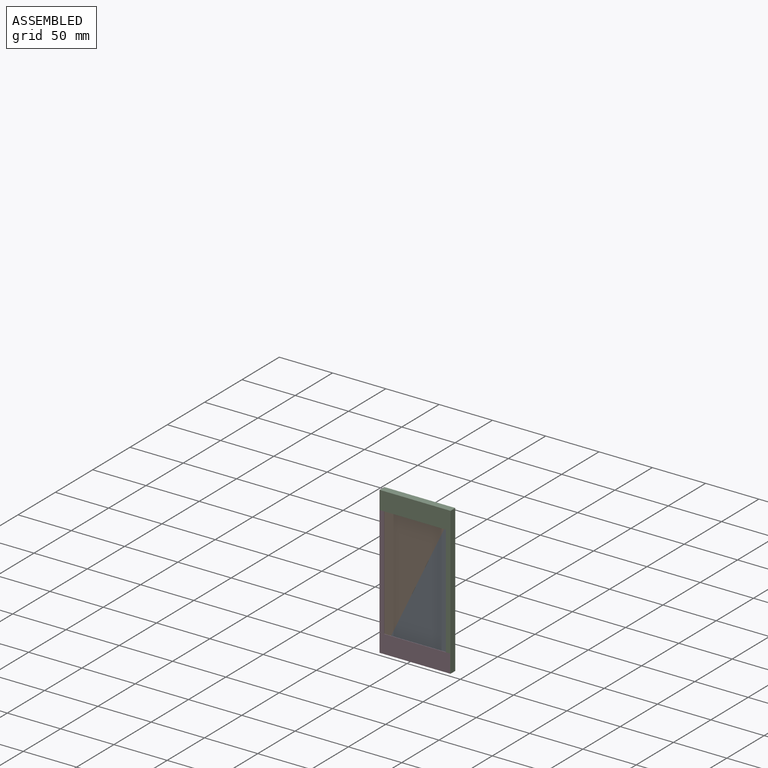
[diagram: assembled view]
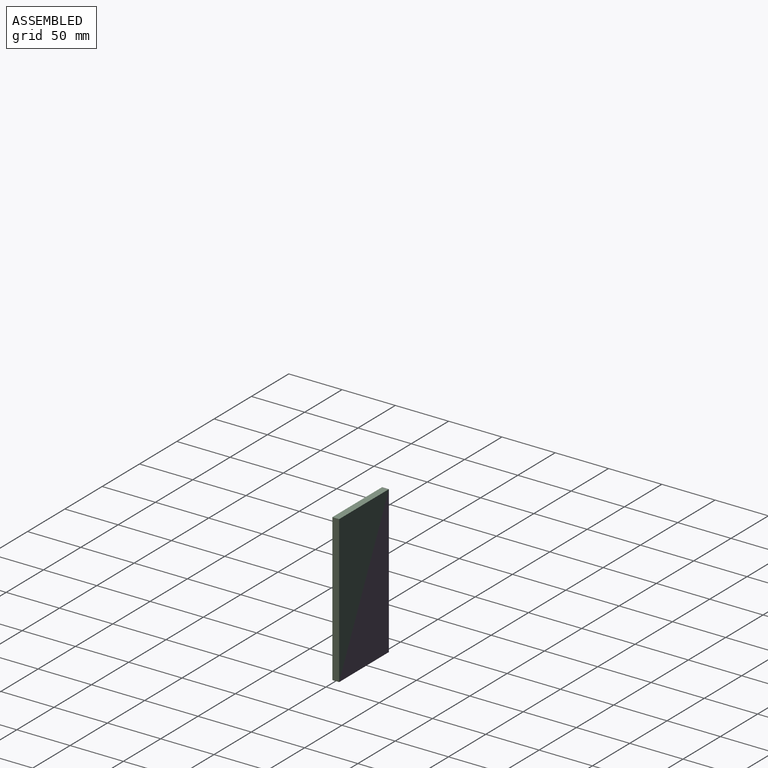
[diagram: assembled view, second angle]
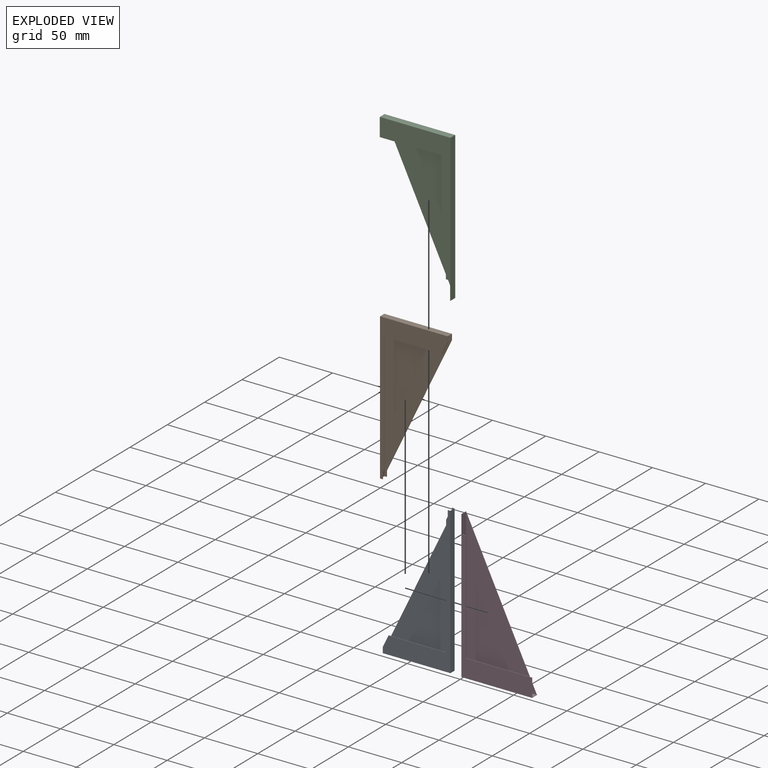
[diagram: exploded view]
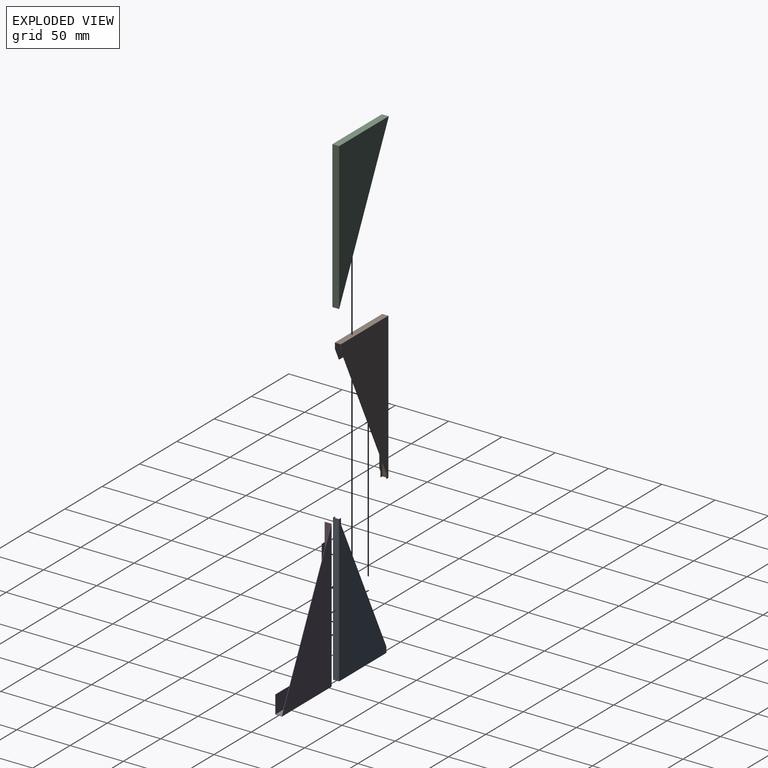
[diagram: exploded view, second angle]
ASSEMBLY  parts=4 mates=4
PART A: 17 faces, bbox 63.5x5.7x137.5 mm
  f0: plane 5.29x0.32mm, normal (1,0,0), area 1.7mm2, adj f1,f9,f10,f13
  f1: plane 126.98x60.94mm, normal (0.9,0,-0.43), area 44.7mm2, adj f0,f3,f10,f13
  f2: plane 3.03x1.45mm, normal (0.9,0,-0.43), area 1.1mm2, adj f4,f5,f12,f14
  f3: plane 5.72x5.27mm, normal (1,0,0), area 5mm2, adj f1,f4,f6,f7,f10,f13,f14,f15
  f4: plane 137.54x63.48mm, normal (0,-1,0), area 1489.8mm2, adj f2,f3,f5,f6,f7,f8,f9,f11
  f5: plane 5.29x0.32mm, normal (1,0,0), area 1.7mm2, adj f2,f4,f9,f14
  f6: plane 11.22x5.38mm, normal (0.9,0,-0.43), area 4mm2, adj f3,f4,f11,f14
  f7: plane 63.48x5.72mm, normal (0,0,1), area 362.8mm2, adj f3,f4,f8,f10
  f8: plane 137.54x5.72mm, normal (-1,0,0), area 786mm2, adj f4,f7,f9,f10
  f9: plane 5.72x2.54mm, normal (0,0,-1), area 3.2mm2, adj f0,f4,f5,f8,f10,f13,f14,f16
  f10: plane 137.54x63.48mm, normal (0,1,0), area 4539.6mm2, adj f0,f1,f3,f7,f8,f9
  f11: plane 54.11x0.32mm, normal (0,0,-1), area 17.2mm2, adj f4,f6,f12,f14
  f12: plane 112.74x0.32mm, normal (1,0,0), area 35.8mm2, adj f2,f4,f11,f14
  f13: plane 137.22x63.17mm, normal (0,-1,0), area 4475.9mm2, adj f0,f1,f3,f9,f15,f16
  f14: plane 137.22x63.17mm, normal (0,1,0), area 1426mm2, adj f2,f3,f5,f6,f9,f11,f12,f15
  f15: plane 63.17x5.08mm, normal (0,0,-1), area 320.9mm2, adj f3,f13,f14,f16
  f16: plane 137.22x5.08mm, normal (1,0,0), area 697.1mm2, adj f9,f13,f14,f15
PART B: same geometry as A
PART C: 15 faces, bbox 66.7x6.4x138.2 mm
  f0: plane 138.18x66.34mm, normal (0,-1,0), area 1589.2mm2, adj f4,f5,f6,f7,f8,f10,f11,f14
  f1: plane 120.74x66.02mm, normal (0,1,0), area 1524.3mm2, adj f2,f5,f6,f10,f11,f14
  f2: plane 66.02x5.72mm, normal (0,0,1), area 377.3mm2, adj f1,f9,f10,f14
  f3: plane 138.18x66.66mm, normal (0,1,0), area 4605.3mm2, adj f4,f8,f12
  f4: plane 66.66x6.35mm, normal (0,0,-1), area 421.4mm2, adj f0,f3,f8,f9,f12,f14
  f5: plane 103.94x0.32mm, normal (1,0,0), area 33mm2, adj f0,f1,f6,f11
  f6: plane 62.03x0.32mm, normal (0,0,1), area 19.7mm2, adj f0,f1,f5,f14
  f7: plane 6.03x0.32mm, normal (0,0,1), area 1.9mm2, adj f0,f8,f10,f13
  f8: plane 138.18x6.35mm, normal (-1,0,0), area 877.4mm2, adj f0,f3,f4,f7,f12
  f9: plane 137.52x66.34mm, normal (0,-1,0), area 4540.5mm2, adj f2,f4,f10,f12,f14
  f10: plane 137.86x6.03mm, normal (1,0,0), area 793.3mm2, adj f0,f1,f2,f7,f9,f11,f13
  f11: plane 3.99x0.32mm, normal (0,0,1), area 1.3mm2, adj f0,f1,f5,f10
  f12: plane 138.18x66.66mm, normal (0.9,0,0.43), area 48.7mm2, adj f3,f4,f8,f9,f13
  f13: plane 0.66x0.32mm, normal (0,1,0), area 0.1mm2, adj f7,f10,f12
  f14: plane 17.12x6.03mm, normal (1,0,0), area 7.2mm2, adj f0,f1,f2,f4,f6,f9
PART D: same geometry as C
PLACE A rot(axis=(0,1,0),180deg) t=(7.49,5.81,-2.37)mm
PLACE B t=(7.8,5.81,-2.37)mm
PLACE C rot(axis=(0,1,0),180deg) t=(7.45,6.12,-2.37)mm
PLACE D t=(7.84,6.12,-2.37)mm fixed
MATE slider A.f9 <-> C.f2  axis (0,0,1) through (40.66,2.95,66.4)mm
MATE slider A.f3 <-> D.f10  axis (-1,0,0) through (-22.83,2.95,-71.14)mm
MATE slider B.f9 <-> D.f2  axis (0,0,-1) through (-25.37,2.95,-71.14)mm
MATE slider B.f3 <-> C.f10  axis (1,0,0) through (38.12,2.95,66.4)mm
